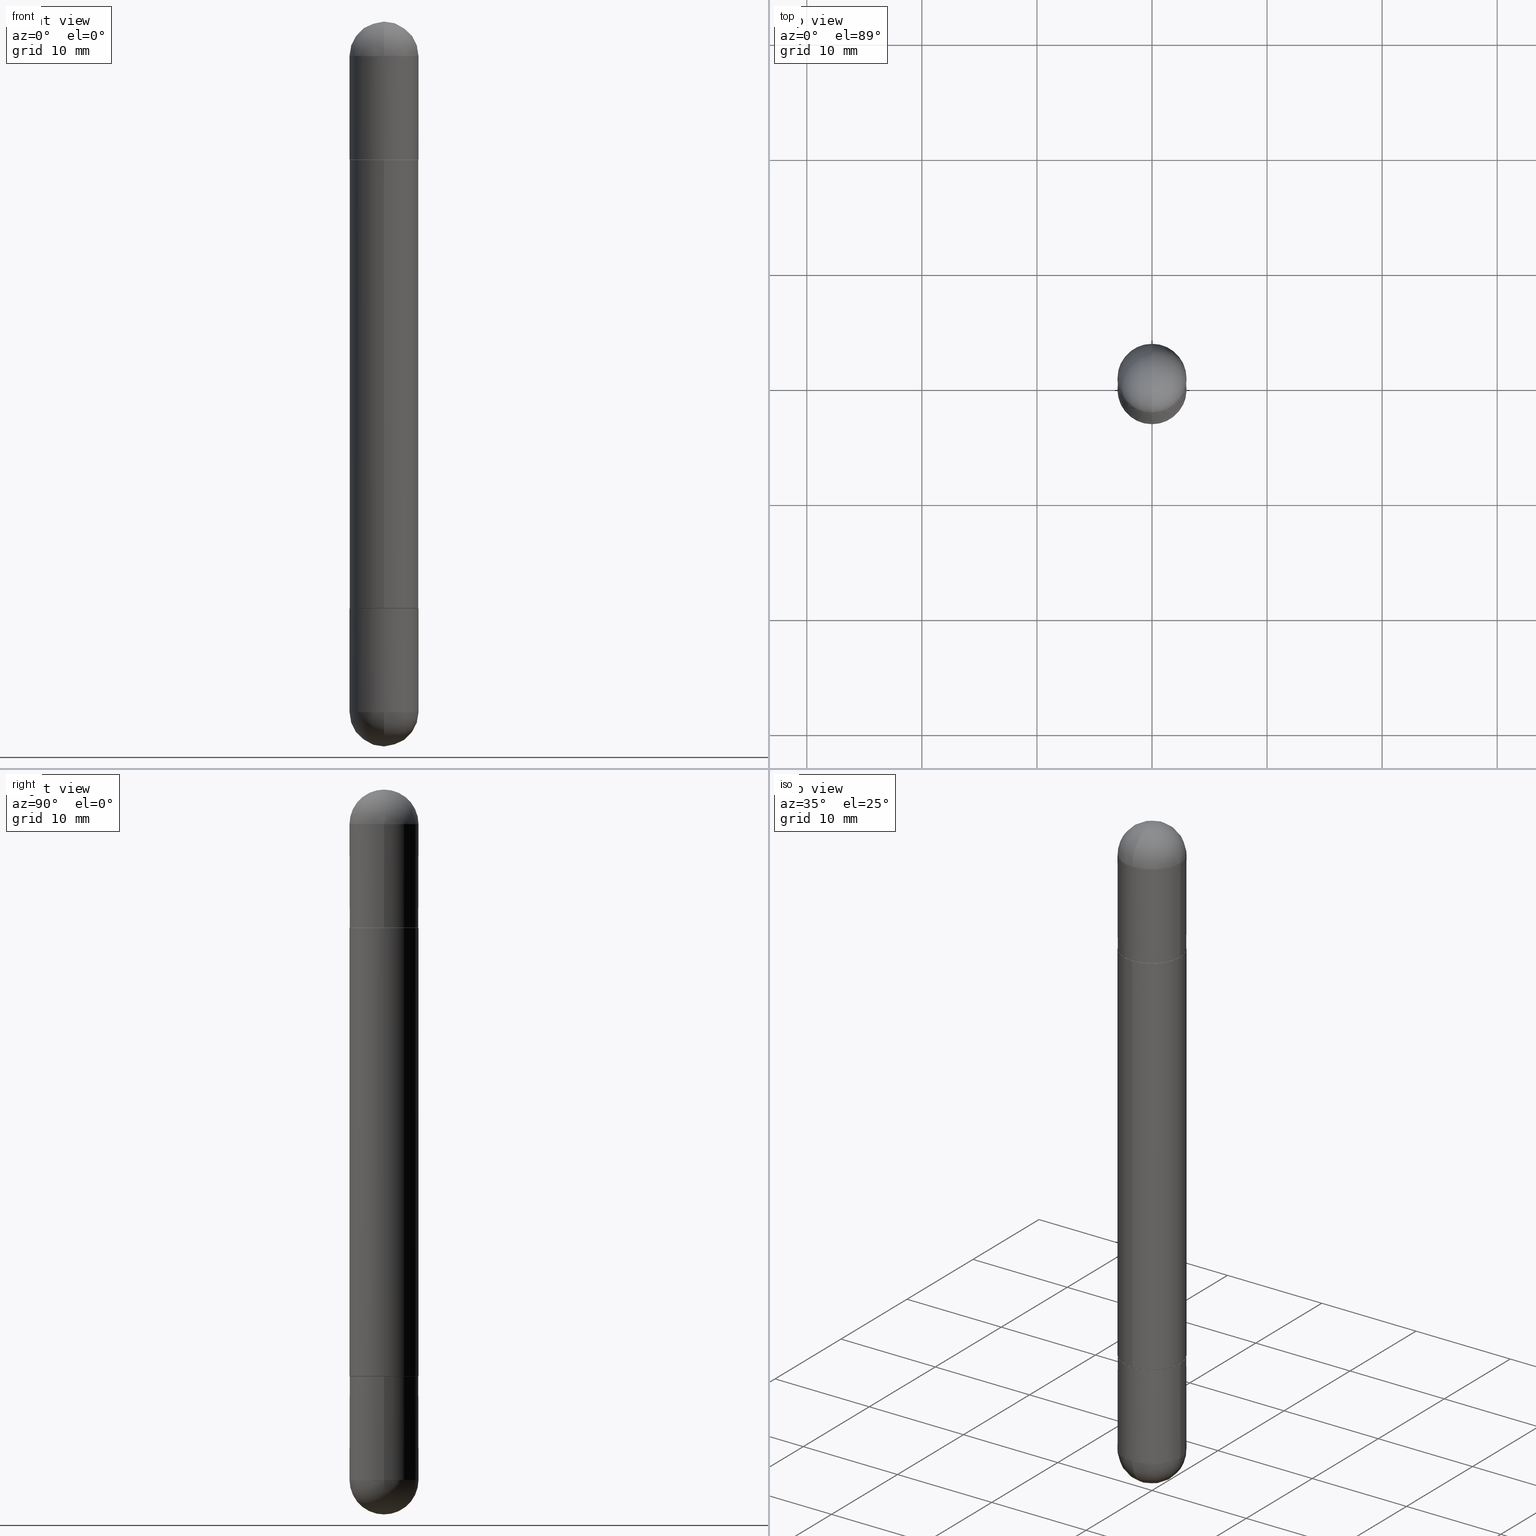
[diagram: canonical four-view strip — front | top / right | iso, engineering-drawing reading convention]
A machine part, canonical four-view strip (front | top / right | iso — engineering-drawing reading convention). The complete STEP part file that produces these views, byte-faithful:
ISO-10303-21;
HEADER;
FILE_DESCRIPTION (( 'STEP AP203' ),
    '1' );
FILE_NAME ('49103.STEP',
    '2024-03-01T12:52:53',
    ( '' ),
    ( '' ),
    'SwSTEP 2.0',
    'SolidWorks 2023',
    '' );
FILE_SCHEMA (( 'CONFIG_CONTROL_DESIGN' ));
ENDSEC;

DATA;
#1 = CARTESIAN_POINT ( 'NONE',  ( -8.246878922347486570E-16, -0.1181000000000001077, -2.480300000000001059 ) ) ;
#2 = CARTESIAN_POINT ( 'NONE',  ( 0.000000000000000000, 0.000000000000000000, -2.480300000000000171 ) ) ;
#3 = CARTESIAN_POINT ( 'NONE',  ( 0.000000000000000000, 0.000000000000000000, -2.480300000000000171 ) ) ;
#4 = DIRECTION ( 'NONE',  ( -6.982962677686265922E-15, -1.000000000000000000, 3.492150082336742220E-15 ) ) ;
#5 = CLOSED_SHELL ( 'NONE', ( #603, #395, #774, #85, #481, #327, #576, #790 ) ) ;
#6 = ADVANCED_FACE ( 'NONE', ( #548 ), #363, .T. ) ;
#7 = CIRCLE ( 'NONE', #779, 0.1180999999999999966 ) ;
#8 = ORIENTED_EDGE ( 'NONE', *, *, #432, .T. ) ;
#9 = AXIS2_PLACEMENT_3D ( 'NONE', #132, #817, #815 ) ;
#10 = FACE_OUTER_BOUND ( 'NONE', #410, .T. ) ;
#11 = CARTESIAN_POINT ( 'NONE',  ( 4.909319164617213777E-29, -7.011888150323944125E-15, -0.4724000000000001531 ) ) ;
#12 = APPROVAL_STATUS ( 'not_yet_approved' ) ;
#13 = ORIENTED_EDGE ( 'NONE', *, *, #489, .T. ) ;
#14 = CC_DESIGN_DATE_AND_TIME_ASSIGNMENT ( #215, #151, ( #233 ) ) ;
#15 = PERSON_AND_ORGANIZATION ( #155, #622 ) ;
#16 = CARTESIAN_POINT ( 'NONE',  ( 5.776686413970530874E-29, -8.247577218615279626E-15, -0.1181000000000000383 ) ) ;
#17 = VERTEX_POINT ( 'NONE', #92 ) ;
#18 = EDGE_CURVE ( 'NONE', #202, #778, #161, .T. ) ;
#19 = MECHANICAL_CONTEXT ( 'NONE', #746, 'mechanical' ) ;
#20 = VECTOR ( 'NONE', #451, 39.37007874015748143 ) ;
#21 = LINE ( 'NONE', #285, #798 ) ;
#22 = EDGE_LOOP ( 'NONE', ( #802, #181 ) ) ;
#23 = AXIS2_PLACEMENT_3D ( 'NONE', #691, #117, #316 ) ;
#24 = EDGE_LOOP ( 'NONE', ( #468, #773, #313, #446, #551 ) ) ;
#25 = VECTOR ( 'NONE', #694, 39.37007874015748143 ) ;
#26 = EDGE_CURVE ( 'NONE', #269, #331, #229, .T. ) ;
#27 = DIRECTION ( 'NONE',  ( -2.445001825099463957E-29, 3.492150082336742220E-15, -1.000000000000000000 ) ) ;
#28 = DIRECTION ( 'NONE',  ( 1.000000000000000000, -6.982962677686265922E-15, -4.883557194083112901E-29 ) ) ;
#29 = ORIENTED_EDGE ( 'NONE', *, *, #268, .T. ) ;
#30 = ORIENTED_EDGE ( 'NONE', *, *, #105, .T. ) ;
#31 = LINE ( 'NONE', #417, #583 ) ;
#32 = DIRECTION ( 'NONE',  ( -2.445468806185136597E-29, 3.491481338843145583E-15, 1.000000000000000000 ) ) ;
#33 = EDGE_LOOP ( 'NONE', ( #379, #13, #138, #231 ) ) ;
#34 = DIRECTION ( 'NONE',  ( 2.445001825099463957E-29, -3.492150082336741825E-15, 1.000000000000000000 ) ) ;
#35 = DIRECTION ( 'NONE',  ( 2.445468806185136597E-29, -3.491481338843145583E-15, 1.000000000000000000 ) ) ;
#36 = EDGE_CURVE ( 'NONE', #225, #818, #680, .T. ) ;
#37 = CARTESIAN_POINT ( 'NONE',  ( 5.445566636056644627E-29, -8.721759586755329923E-15, -0.1181000000000000383 ) ) ;
#38 = CIRCLE ( 'NONE', #501, 0.1180999999999999966 ) ;
#39 = CIRCLE ( 'NONE', #259, 0.1181000000000002603 ) ;
#40 = APPROVAL_PERSON_ORGANIZATION ( #15, #754, #282 ) ;
#41 = CARTESIAN_POINT ( 'NONE',  ( -8.246878922347006351E-16, -0.1181000000000072547, -0.4734000000000008757 ) ) ;
#42 = APPROVAL_STATUS ( 'not_yet_approved' ) ;
#43 = CARTESIAN_POINT ( 'NONE',  ( 5.776686413970530874E-29, -8.247577218615279626E-15, -0.1181000000000000383 ) ) ;
#44 = COORDINATED_UNIVERSAL_TIME_OFFSET ( 5, 0, .BEHIND. ) ;
#45 = ORIENTED_EDGE ( 'NONE', *, *, #420, .F. ) ;
#46 = CARTESIAN_POINT ( 'NONE',  ( 5.776686413970530874E-29, -8.247577218615279626E-15, -2.362200000000000077 ) ) ;
#47 = DIRECTION ( 'NONE',  ( 1.000000000000000000, -6.982962677686265133E-15, 0.000000000000000000 ) ) ;
#48 = DIRECTION ( 'NONE',  ( 4.851104656541377638E-15, 0.7071067811866103003, -0.7071067811864847341 ) ) ;
#49 = CARTESIAN_POINT ( 'NONE',  ( 5.739426259004713893E-29, -9.126871993523741848E-15, -2.480300000000000171 ) ) ;
#50 = AXIS2_PLACEMENT_3D ( 'NONE', #605, #35, #236 ) ;
#51 = AXIS2_PLACEMENT_3D ( 'NONE', #735, #368, #431 ) ;
#52 = EDGE_CURVE ( 'NONE', #699, #516, #244, .T. ) ;
#53 = CIRCLE ( 'NONE', #743, 0.1170999999999999958 ) ;
#54 = EDGE_LOOP ( 'NONE', ( #154, #540 ) ) ;
#55 = DIRECTION ( 'NONE',  ( 1.000000000000000000, -6.982962677686265133E-15, 0.000000000000000000 ) ) ;
#56 = DIRECTION ( 'NONE',  ( 1.000000000000000000, -6.982962677686266711E-15, 0.000000000000000000 ) ) ;
#57 = ORIENTED_EDGE ( 'NONE', *, *, #90, .F. ) ;
#58 = FACE_OUTER_BOUND ( 'NONE', #689, .T. ) ;
#59 = CARTESIAN_POINT ( 'NONE',  ( 5.445566636056644627E-29, -8.721759586755329923E-15, -0.1181000000000000383 ) ) ;
#60 = ORIENTED_EDGE ( 'NONE', *, *, #36, .F. ) ;
#61 = EDGE_CURVE ( 'NONE', #406, #68, #111, .T. ) ;
#62 = DIRECTION ( 'NONE',  ( -6.982962677686265922E-15, -1.000000000000000000, 2.332918867347791121E-15 ) ) ;
#63 = AXIS2_PLACEMENT_3D ( 'NONE', #673, #34, #159 ) ;
#64 = AXIS2_PLACEMENT_3D ( 'NONE', #2, #767, #522 ) ;
#65 = CARTESIAN_POINT ( 'NONE',  ( -8.177049295570126487E-16, -0.1171000000000070179, -0.4724000000000008193 ) ) ;
#66 = CARTESIAN_POINT ( 'NONE',  ( 5.445566636056644627E-29, -8.721759586755329923E-15, -0.1181000000000000383 ) ) ;
#67 = AXIS2_PLACEMENT_3D ( 'NONE', #530, #654, #81 ) ;
#68 = VERTEX_POINT ( 'NONE', #782 ) ;
#69 =( CONVERSION_BASED_UNIT ( 'INCH', #640 ) LENGTH_UNIT ( ) NAMED_UNIT ( #191 ) );
#70 = ORIENTED_EDGE ( 'NONE', *, *, #340, .F. ) ;
#71 = PLANE ( 'NONE',  #582 ) ;
#72 =( NAMED_UNIT ( * ) SI_UNIT ( $, .STERADIAN. ) SOLID_ANGLE_UNIT ( ) );
#73 = VERTEX_POINT ( 'NONE', #585 ) ;
#74 = CARTESIAN_POINT ( 'NONE',  ( -8.246878922347090168E-16, -0.1181000000000044375, -1.240150000000000086 ) ) ;
#75 = PERSON_AND_ORGANIZATION ( #155, #622 ) ;
#76 = VECTOR ( 'NONE', #27, 39.37007874015748143 ) ;
#77 = EDGE_CURVE ( 'NONE', #511, #563, #211, .T. ) ;
#78 = ORIENTED_EDGE ( 'NONE', *, *, #590, .T. ) ;
#79 = APPROVAL_PERSON_ORGANIZATION ( #709, #695, #137 ) ;
#80 = DIRECTION ( 'NONE',  ( -6.982962677686265922E-15, -1.000000000000000000, 2.332918867347791121E-15 ) ) ;
#81 = DIRECTION ( 'NONE',  ( -1.000000000000000000, 6.982962677686265922E-15, 4.876176775795935793E-29 ) ) ;
#82 = ORIENTED_EDGE ( 'NONE', *, *, #675, .F. ) ;
#83 = DIRECTION ( 'NONE',  ( -2.445001825099463957E-29, 3.492150082336741825E-15, -1.000000000000000000 ) ) ;
#84 = ORIENTED_EDGE ( 'NONE', *, *, #275, .F. ) ;
#85 = ADVANCED_FACE ( 'NONE', ( #287 ), #71, .F. ) ;
#86 = AXIS2_PLACEMENT_3D ( 'NONE', #3, #523, #136 ) ;
#87 = LINE ( 'NONE', #783, #439 ) ;
#88 = ORIENTED_EDGE ( 'NONE', *, *, #562, .T. ) ;
#89 = CARTESIAN_POINT ( 'NONE',  ( 5.445566636056644627E-29, -8.721759586755329923E-15, -2.362200000000000077 ) ) ;
#90 = EDGE_CURVE ( 'NONE', #628, #216, #276, .T. ) ;
#91 = CARTESIAN_POINT ( 'NONE',  ( 8.067945645379818259E-16, 0.1170999999999929736, -0.4723999999999999866 ) ) ;
#92 = CARTESIAN_POINT ( 'NONE',  ( 8.067945645379818259E-16, 0.1170999999999929736, -0.4723999999999999866 ) ) ;
#93 = ADVANCED_FACE ( 'NONE', ( #147 ), #404, .T. ) ;
#94 = CARTESIAN_POINT ( 'NONE',  ( 4.910256815939136430E-29, -7.010545380263152499E-15, -0.4724000000000001531 ) ) ;
#95 = EDGE_CURVE ( 'NONE', #589, #457, #396, .T. ) ;
#96 = DIRECTION ( 'NONE',  ( 2.445001825099463957E-29, -3.492150082336741825E-15, 1.000000000000000000 ) ) ;
#97 = ADVANCED_FACE ( 'NONE', ( #228 ), #171, .T. ) ;
#98 = AXIS2_PLACEMENT_3D ( 'NONE', #133, #477, #618 ) ;
#99 = VECTOR ( 'NONE', #646, 39.37007874015748143 ) ;
#100 = AXIS2_PLACEMENT_3D ( 'NONE', #485, #568, #62 ) ;
#101 = PERSON_AND_ORGANIZATION_ROLE ( 'creator' ) ;
#102 = DIRECTION ( 'NONE',  ( 6.982962677686265133E-15, 1.000000000000000000, 0.000000000000000000 ) ) ;
#103 = PLANE ( 'NONE',  #112 ) ;
#104 = CARTESIAN_POINT ( 'NONE',  ( 0.000000000000000000, 0.000000000000000000, 0.000000000000000000 ) ) ;
#105 = EDGE_CURVE ( 'NONE', #628, #452, #650, .T. ) ;
#106 = VERTEX_POINT ( 'NONE', #483 ) ;
#107 = DIRECTION ( 'NONE',  ( -6.982962677686265922E-15, -1.000000000000000000, -3.492150082336742220E-15 ) ) ;
#108 = PERSON_AND_ORGANIZATION_ROLE ( 'classification_officer' ) ;
#109 = ORIENTED_EDGE ( 'NONE', *, *, #309, .T. ) ;
#110 = DIRECTION ( 'NONE',  ( -6.982962677686265922E-15, -1.000000000000000000, -3.469747663417770297E-15 ) ) ;
#111 = CIRCLE ( 'NONE', #809, 0.1170999999999999958 ) ;
#112 = AXIS2_PLACEMENT_3D ( 'NONE', #497, #376, #752 ) ;
#113 = AXIS2_PLACEMENT_3D ( 'NONE', #701, #312, #329 ) ;
#114 = DIRECTION ( 'NONE',  ( -1.000000000000000000, 6.982962677686265922E-15, 4.883557194083112340E-29 ) ) ;
#115 = ORIENTED_EDGE ( 'NONE', *, *, #562, .F. ) ;
#116 = DIRECTION ( 'NONE',  ( -6.982962677686265133E-15, -1.000000000000000000, -4.626330217890365392E-15 ) ) ;
#117 = DIRECTION ( 'NONE',  ( -1.000000000000000000, 6.982962677686265922E-15, 4.883557194083112340E-29 ) ) ;
#118 = EDGE_CURVE ( 'NONE', #128, #449, #364, .T. ) ;
#119 = CARTESIAN_POINT ( 'NONE',  ( 8.102248135368686180E-16, 0.1180999999999932243, -0.4734000000000000430 ) ) ;
#120 = CARTESIAN_POINT ( 'NONE',  ( 4.909319164617213216E-29, -7.011888150323943336E-15, -0.4724000000000004307 ) ) ;
#121 = EDGE_CURVE ( 'NONE', #17, #628, #668, .T. ) ;
#122 = CC_DESIGN_PERSON_AND_ORGANIZATION_ASSIGNMENT ( #427, #108, ( #299 ) ) ;
#123 = EDGE_LOOP ( 'NONE', ( #197, #750, #263, #209 ) ) ;
#124 = DIRECTION ( 'NONE',  ( 2.445468806185136597E-29, -3.491481338843145583E-15, 1.000000000000000000 ) ) ;
#125 = ORIENTED_EDGE ( 'NONE', *, *, #420, .T. ) ;
#126 = AXIS2_PLACEMENT_3D ( 'NONE', #670, #357, #785 ) ;
#127 = CIRCLE ( 'NONE', #687, 0.1180999999999999966 ) ;
#128 = VERTEX_POINT ( 'NONE', #41 ) ;
#129 = CARTESIAN_POINT ( 'NONE',  ( 8.102248135368185253E-16, 0.1181000000000001077, -2.480299999999999727 ) ) ;
#130 = CIRCLE ( 'NONE', #770, 0.1180999999999999966 ) ;
#131 = EDGE_LOOP ( 'NONE', ( #297, #433, #642, #385 ) ) ;
#132 = CARTESIAN_POINT ( 'NONE',  ( 4.910256815939136430E-29, -7.010545380263152499E-15, -2.007900000000000240 ) ) ;
#133 = CARTESIAN_POINT ( 'NONE',  ( 5.776686413970530874E-29, -8.247577218615279626E-15, -0.1181000000000000383 ) ) ;
#134 = EDGE_LOOP ( 'NONE', ( #359, #445, #534, #88, #184 ) ) ;
#135 = CYLINDRICAL_SURFACE ( 'NONE', #464, 0.1181000000000001077 ) ;
#136 = DIRECTION ( 'NONE',  ( -6.982962677686265133E-15, -1.000000000000000000, -4.626330217890365392E-15 ) ) ;
#137 = APPROVAL_ROLE ( '' ) ;
#138 = ORIENTED_EDGE ( 'NONE', *, *, #275, .T. ) ;
#139 = MANIFOLD_SOLID_BREP ( 'Mirror4[3]', #620 ) ;
#140 = PERSON_AND_ORGANIZATION ( #155, #622 ) ;
#141 = CIRCLE ( 'NONE', #607, 0.1180999999999999966 ) ;
#142 = CONICAL_SURFACE ( 'NONE', #284, 0.1170999999999999958, 0.7853981633975336552 ) ;
#143 = DIRECTION ( 'NONE',  ( -6.982962677686265922E-15, -1.000000000000000000, 2.332918867347791121E-15 ) ) ;
#144 = ORIENTED_EDGE ( 'NONE', *, *, #61, .F. ) ;
#145 = AXIS2_PLACEMENT_3D ( 'NONE', #510, #764, #341 ) ;
#146 = LINE ( 'NONE', #1, #99 ) ;
#147 = FACE_OUTER_BOUND ( 'NONE', #156, .T. ) ;
#148 = FACE_OUTER_BOUND ( 'NONE', #134, .T. ) ;
#149 = FACE_OUTER_BOUND ( 'NONE', #711, .T. ) ;
#150 = ORIENTED_EDGE ( 'NONE', *, *, #612, .F. ) ;
#151 = DATE_TIME_ROLE ( 'creation_date' ) ;
#152 = DIRECTION ( 'NONE',  ( -2.445001825099463957E-29, 3.492150082336741825E-15, 1.000000000000000000 ) ) ;
#153 = CYLINDRICAL_SURFACE ( 'NONE', #283, 0.1180999999999999966 ) ;
#154 = ORIENTED_EDGE ( 'NONE', *, *, #243, .T. ) ;
#155 = PERSON ( 'UNSPECIFIED', 'UNSPECIFIED', 'UNSPECIFIED', ('UNSPECIFIED'), ('UNSPECIFIED'), ('UNSPECIFIED') ) ;
#156 = EDGE_LOOP ( 'NONE', ( #611, #280, #347, #45 ) ) ;
#157 = PRODUCT_RELATED_PRODUCT_CATEGORY ( 'detail', '', ( #712 ) ) ;
#158 = EDGE_CURVE ( 'NONE', #516, #265, #714, .T. ) ;
#159 = DIRECTION ( 'NONE',  ( -6.982962677686265922E-15, -1.000000000000000000, -3.499378301021686484E-15 ) ) ;
#160 = DIRECTION ( 'NONE',  ( 1.000000000000000000, -6.982962677686266711E-15, 0.000000000000000000 ) ) ;
#161 = CIRCLE ( 'NONE', #476, 0.1170999999999999958 ) ;
#162 = AXIS2_PLACEMENT_3D ( 'NONE', #633, #749, #201 ) ;
#163 = EDGE_CURVE ( 'NONE', #472, #449, #361, .T. ) ;
#164 = CC_DESIGN_PERSON_AND_ORGANIZATION_ASSIGNMENT ( #550, #183, ( #441 ) ) ;
#165 = DIRECTION ( 'NONE',  ( 6.982962677686265922E-15, 1.000000000000000000, 3.469747663417769508E-15 ) ) ;
#166 = FACE_OUTER_BOUND ( 'NONE', #708, .T. ) ;
#167 = DIRECTION ( 'NONE',  ( -4.937700262164969294E-15, -0.7071067811866054154, -0.7071067811864896191 ) ) ;
#168 = CC_DESIGN_PERSON_AND_ORGANIZATION_ASSIGNMENT ( #140, #538, ( #233 ) ) ;
#169 = PERSON_AND_ORGANIZATION ( #155, #622 ) ;
#170 = ORIENTED_EDGE ( 'NONE', *, *, #737, .T. ) ;
#171 = CYLINDRICAL_SURFACE ( 'NONE', #557, 0.1180999999999999966 ) ;
#172 = EDGE_CURVE ( 'NONE', #725, #457, #595, .T. ) ;
#173 = CLOSED_SHELL ( 'NONE', ( #753, #436, #424, #428, #625 ) ) ;
#174 = ORIENTED_EDGE ( 'NONE', *, *, #77, .F. ) ;
#175 = CIRCLE ( 'NONE', #305, 0.1181000000000002326 ) ;
#176 = CARTESIAN_POINT ( 'NONE',  ( -0.1180999999999999966, -6.789910328506537866E-15, -2.007900000000000240 ) ) ;
#177 = AXIS2_PLACEMENT_3D ( 'NONE', #195, #443, #693 ) ;
#178 = CARTESIAN_POINT ( 'NONE',  ( 5.445566636056644627E-29, -8.721759586755329923E-15, -0.1181000000000000383 ) ) ;
#179 = EDGE_CURVE ( 'NONE', #575, #106, #671, .T. ) ;
#180 = PERSON_AND_ORGANIZATION ( #155, #622 ) ;
#181 = ORIENTED_EDGE ( 'NONE', *, *, #18, .T. ) ;
#182 = DIRECTION ( 'NONE',  ( -6.982962677686265922E-15, -1.000000000000000000, -3.499378301021686484E-15 ) ) ;
#183 = PERSON_AND_ORGANIZATION_ROLE ( 'design_supplier' ) ;
#184 = ORIENTED_EDGE ( 'NONE', *, *, #172, .T. ) ;
#185 = CARTESIAN_POINT ( 'NONE',  ( 4.909319164617213216E-29, -7.011888150323943336E-15, -0.4724000000000004307 ) ) ;
#186 = EDGE_CURVE ( 'NONE', #778, #202, #399, .T. ) ;
#187 = FACE_OUTER_BOUND ( 'NONE', #131, .T. ) ;
#188 = ORIENTED_EDGE ( 'NONE', *, *, #268, .F. ) ;
#189 = CARTESIAN_POINT ( 'NONE',  ( 5.445566636056644627E-29, -8.721759586755329923E-15, -2.362200000000000077 ) ) ;
#190 = EDGE_CURVE ( 'NONE', #656, #17, #320, .T. ) ;
#191 = DIMENSIONAL_EXPONENTS ( 1.000000000000000000, 0.000000000000000000, 0.000000000000000000, 0.000000000000000000, 0.000000000000000000, 0.000000000000000000, 0.000000000000000000 ) ;
#192 = CIRCLE ( 'NONE', #758, 0.1181000000000002326 ) ;
#193 = SPHERICAL_SURFACE ( 'NONE', #162, 0.1181000000000002603 ) ;
#194 = CIRCLE ( 'NONE', #609, 0.1181000000000002603 ) ;
#195 = CARTESIAN_POINT ( 'NONE',  ( 4.910256815939136430E-29, -7.010545380263152499E-15, -0.4724000000000001531 ) ) ;
#196 = DIRECTION ( 'NONE',  ( 6.860497997771530774E-15, 1.000000000000000000, 0.000000000000000000 ) ) ;
#197 = ORIENTED_EDGE ( 'NONE', *, *, #590, .F. ) ;
#198 = CARTESIAN_POINT ( 'NONE',  ( 4.906874162792113662E-29, -7.008396000241606777E-15, -0.4734000000000004871 ) ) ;
#199 = DIRECTION ( 'NONE',  ( 1.000000000000000000, -6.982962677686265133E-15, 0.000000000000000000 ) ) ;
#200 = ORIENTED_EDGE ( 'NONE', *, *, #460, .F. ) ;
#201 = DIRECTION ( 'NONE',  ( 6.982962677686265922E-15, 1.000000000000000000, 3.469747663417769508E-15 ) ) ;
#202 = VERTEX_POINT ( 'NONE', #91 ) ;
#203 = CARTESIAN_POINT ( 'NONE',  ( 3.032169013397101030E-29, -4.330789924609910970E-15, -1.240150000000000086 ) ) ;
#204 = DIRECTION ( 'NONE',  ( -1.000000000000000000, 0.000000000000000000, 0.000000000000000000 ) ) ;
#205 = ORIENTED_EDGE ( 'NONE', *, *, #675, .T. ) ;
#206 = AXIS2_PLACEMENT_3D ( 'NONE', #43, #423, #413 ) ;
#207 = PLANE ( 'NONE',  #688 ) ;
#208 = CIRCLE ( 'NONE', #426, 0.1181000000000002603 ) ;
#209 = ORIENTED_EDGE ( 'NONE', *, *, #163, .F. ) ;
#210 = EDGE_CURVE ( 'NONE', #216, #422, #535, .T. ) ;
#211 = LINE ( 'NONE', #343, #702 ) ;
#212 = CARTESIAN_POINT ( 'NONE',  ( 4.909319164617213777E-29, -7.011888150323944125E-15, -2.007900000000000240 ) ) ;
#213 = DIRECTION ( 'NONE',  ( 1.000000000000000000, -6.860497997771530774E-15, -4.840798879624142912E-29 ) ) ;
#214 = ORIENTED_EDGE ( 'NONE', *, *, #453, .T. ) ;
#215 = DATE_AND_TIME ( #780, #787 ) ;
#216 = VERTEX_POINT ( 'NONE', #795 ) ;
#217 = CARTESIAN_POINT ( 'NONE',  ( 5.739426259004713893E-29, -9.126871993523741848E-15, 2.219626494852213988E-16 ) ) ;
#218 = VECTOR ( 'NONE', #292, 39.37007874015748143 ) ;
#219 = EDGE_CURVE ( 'NONE', #225, #699, #281, .T. ) ;
#220 = APPROVAL_STATUS ( 'not_yet_approved' ) ;
#221 = AXIS2_PLACEMENT_3D ( 'NONE', #330, #458, #644 ) ;
#222 = AXIS2_PLACEMENT_3D ( 'NONE', #323, #264, #512 ) ;
#223 = ORIENTED_EDGE ( 'NONE', *, *, #705, .T. ) ;
#224 = DIRECTION ( 'NONE',  ( -2.445468806185136597E-29, 3.491481338843145583E-15, 1.000000000000000000 ) ) ;
#225 = VERTEX_POINT ( 'NONE', #242 ) ;
#226 = DIRECTION ( 'NONE',  ( -2.445468806185136597E-29, 3.491481338843145583E-15, 1.000000000000000000 ) ) ;
#227 = CYLINDRICAL_SURFACE ( 'NONE', #401, 0.1180999999999999966 ) ;
#228 = FACE_OUTER_BOUND ( 'NONE', #24, .T. ) ;
#229 = CIRCLE ( 'NONE', #50, 0.1180999999999999966 ) ;
#230 = AXIS2_PLACEMENT_3D ( 'NONE', #658, #83, #593 ) ;
#231 = ORIENTED_EDGE ( 'NONE', *, *, #386, .F. ) ;
#232 = LOCAL_TIME ( 7, 52, 53.00000000000000000, #720 ) ;
#233 = PRODUCT_DEFINITION ( 'UNKNOWN', '', #441, #293 ) ;
#234 = DIRECTION ( 'NONE',  ( -0.000000000000000000, -0.000000000000000000, -1.000000000000000000 ) ) ;
#235 = DATE_TIME_ROLE ( 'classification_date' ) ;
#236 = DIRECTION ( 'NONE',  ( 1.000000000000000000, -6.982962677686265133E-15, 0.000000000000000000 ) ) ;
#237 = EDGE_LOOP ( 'NONE', ( #310, #492, #29, #334 ) ) ;
#238 = CARTESIAN_POINT ( 'NONE',  ( 4.906874162792113662E-29, -7.008396000241606777E-15, -2.006899999999999906 ) ) ;
#239 = DATE_AND_TIME ( #560, #759 ) ;
#240 = ORIENTED_EDGE ( 'NONE', *, *, #210, .F. ) ;
#241 = DIRECTION ( 'NONE',  ( 1.000000000000000000, -6.982962677686265133E-15, 0.000000000000000000 ) ) ;
#242 = CARTESIAN_POINT ( 'NONE',  ( 0.1180999999999999966, -8.453749191673964325E-15, -0.1181000000000000383 ) ) ;
#243 = EDGE_CURVE ( 'NONE', #480, #563, #652, .T. ) ;
#244 = CIRCLE ( 'NONE', #98, 0.1180999999999999966 ) ;
#245 = VERTEX_POINT ( 'NONE', #486 ) ;
#246 = AXIS2_PLACEMENT_3D ( 'NONE', #178, #678, #165 ) ;
#247 = CARTESIAN_POINT ( 'NONE',  ( 0.1180999999999999966, -8.453749191673964325E-15, -0.1181000000000000383 ) ) ;
#248 = ADVANCED_FACE ( 'NONE', ( #732 ), #289, .T. ) ;
#249 = CARTESIAN_POINT ( 'NONE',  ( 5.776686413970530874E-29, -8.247577218615279626E-15, -2.362200000000000077 ) ) ;
#250 = DIRECTION ( 'NONE',  ( -2.445001825099463957E-29, 3.492150082336741825E-15, 1.000000000000000000 ) ) ;
#251 = ORIENTED_EDGE ( 'NONE', *, *, #544, .T. ) ;
#252 = FACE_OUTER_BOUND ( 'NONE', #419, .T. ) ;
#253 = CARTESIAN_POINT ( 'NONE',  ( 4.909319164617213216E-29, -7.011888150323943336E-15, -2.007899999999999796 ) ) ;
#254 = FACE_OUTER_BOUND ( 'NONE', #739, .T. ) ;
#255 = FACE_OUTER_BOUND ( 'NONE', #33, .T. ) ;
#256 = ORIENTED_EDGE ( 'NONE', *, *, #600, .F. ) ;
#257 = CARTESIAN_POINT ( 'NONE',  ( 4.909319164617213216E-29, -7.011888150323943336E-15, -0.4724000000000004307 ) ) ;
#258 = CARTESIAN_POINT ( 'NONE',  ( -8.177049295570126487E-16, -0.1171000000000070179, -0.4724000000000008193 ) ) ;
#259 = AXIS2_PLACEMENT_3D ( 'NONE', #715, #213, #710 ) ;
#260 = VECTOR ( 'NONE', #318, 39.37007874015748143 ) ;
#261 = CARTESIAN_POINT ( 'NONE',  ( 4.909319164617213216E-29, -7.011888150323943336E-15, -0.4724000000000004307 ) ) ;
#262 = FACE_OUTER_BOUND ( 'NONE', #760, .T. ) ;
#263 = ORIENTED_EDGE ( 'NONE', *, *, #266, .T. ) ;
#264 = DIRECTION ( 'NONE',  ( -1.000000000000000000, 6.982962677686265922E-15, -4.883557194083112901E-29 ) ) ;
#265 = VERTEX_POINT ( 'NONE', #742 ) ;
#266 = EDGE_CURVE ( 'NONE', #406, #449, #665, .T. ) ;
#267 = SPHERICAL_SURFACE ( 'NONE', #222, 0.1181000000000002603 ) ;
#268 = EDGE_CURVE ( 'NONE', #656, #452, #31, .T. ) ;
#269 = VERTEX_POINT ( 'NONE', #247 ) ;
#270 = VECTOR ( 'NONE', #543, 39.37007874015748143 ) ;
#271 = ORIENTED_EDGE ( 'NONE', *, *, #386, .T. ) ;
#272 = CARTESIAN_POINT ( 'NONE',  ( 0.000000000000000000, 0.000000000000000000, 0.000000000000000000 ) ) ;
#273 = ORIENTED_EDGE ( 'NONE', *, *, #179, .F. ) ;
#274 = EDGE_CURVE ( 'NONE', #245, #269, #730, .T. ) ;
#275 = EDGE_CURVE ( 'NONE', #662, #128, #768, .T. ) ;
#276 = LINE ( 'NONE', #393, #76 ) ;
#277 = APPLICATION_CONTEXT ( 'configuration controlled 3d designs of mechanical parts and assemblies' ) ;
#278 = PLANE ( 'NONE',  #67 ) ;
#279 = CARTESIAN_POINT ( 'NONE',  ( 8.102248135368491923E-16, 0.1180999999999932520, -2.006900000000000350 ) ) ;
#280 = ORIENTED_EDGE ( 'NONE', *, *, #90, .T. ) ;
#281 = CIRCLE ( 'NONE', #206, 0.1180999999999999966 ) ;
#282 = APPROVAL_ROLE ( '' ) ;
#283 = AXIS2_PLACEMENT_3D ( 'NONE', #409, #224, #601 ) ;
#284 = AXIS2_PLACEMENT_3D ( 'NONE', #416, #152, #660 ) ;
#285 = CARTESIAN_POINT ( 'NONE',  ( 8.033643155390953296E-16, 0.1170999999999929736, -0.4723999999999999866 ) ) ;
#286 = EDGE_LOOP ( 'NONE', ( #473, #342 ) ) ;
#287 = FACE_OUTER_BOUND ( 'NONE', #22, .T. ) ;
#288 = DIRECTION ( 'NONE',  ( -2.445468806185136877E-29, 3.491481338843145188E-15, -1.000000000000000000 ) ) ;
#289 = SPHERICAL_SURFACE ( 'NONE', #246, 0.1181000000000002603 ) ;
#290 = EDGE_CURVE ( 'NONE', #733, #511, #520, .T. ) ;
#291 = DIRECTION ( 'NONE',  ( 2.445001825099463957E-29, -3.492150082336741825E-15, 1.000000000000000000 ) ) ;
#292 = DIRECTION ( 'NONE',  ( -2.445001825099463957E-29, 3.492150082336742220E-15, -1.000000000000000000 ) ) ;
#293 = DESIGN_CONTEXT ( 'detailed design', #277, 'design' ) ;
#294 = AXIS2_PLACEMENT_3D ( 'NONE', #300, #553, #727 ) ;
#295 = CIRCLE ( 'NONE', #558, 0.1181000000000002326 ) ;
#296 = DATE_AND_TIME ( #738, #719 ) ;
#297 = ORIENTED_EDGE ( 'NONE', *, *, #706, .F. ) ;
#298 = ORIENTED_EDGE ( 'NONE', *, *, #537, .T. ) ;
#299 = SECURITY_CLASSIFICATION ( '', '', #604 ) ;
#300 = CARTESIAN_POINT ( 'NONE',  ( 4.906874162792113662E-29, -7.008396000241606777E-15, -0.4734000000000004871 ) ) ;
#301 = APPROVAL_ROLE ( '' ) ;
#302 = CARTESIAN_POINT ( 'NONE',  ( 0.1180999999999999966, -8.453749191673964325E-15, -2.362200000000000077 ) ) ;
#303 = DIRECTION ( 'NONE',  ( 1.000000000000000000, -6.982962677686266711E-15, 4.876176775795936353E-29 ) ) ;
#304 = AXIS2_PLACEMENT_3D ( 'NONE', #355, #545, #736 ) ;
#305 = AXIS2_PLACEMENT_3D ( 'NONE', #804, #250, #498 ) ;
#306 = FACE_OUTER_BOUND ( 'NONE', #813, .T. ) ;
#307 = CONICAL_SURFACE ( 'NONE', #479, 0.1170999999999999958, 0.7853981633975336552 ) ;
#308 = DIRECTION ( 'NONE',  ( 1.000000000000000000, -6.982962677686265133E-15, 0.000000000000000000 ) ) ;
#309 = EDGE_CURVE ( 'NONE', #449, #472, #175, .T. ) ;
#310 = ORIENTED_EDGE ( 'NONE', *, *, #121, .F. ) ;
#311 = DIRECTION ( 'NONE',  ( 2.445001825099463957E-29, -3.492150082336741825E-15, 1.000000000000000000 ) ) ;
#312 = DIRECTION ( 'NONE',  ( -2.445468806185136597E-29, 3.491481338843145583E-15, -1.000000000000000000 ) ) ;
#313 = ORIENTED_EDGE ( 'NONE', *, *, #243, .F. ) ;
#314 = ADVANCED_BREP_SHAPE_REPRESENTATION ( '49103', ( #407, #676, #139, #696, #408, #664 ), #584 ) ;
#315 = FACE_OUTER_BOUND ( 'NONE', #123, .T. ) ;
#316 = DIRECTION ( 'NONE',  ( -6.982962677686265133E-15, -1.000000000000000000, 0.000000000000000000 ) ) ;
#317 = CARTESIAN_POINT ( 'NONE',  ( -0.1180999999999999966, -6.818836485902398524E-15, -0.4724000000000001531 ) ) ;
#318 = DIRECTION ( 'NONE',  ( -2.445001825099463957E-29, 3.492150082336742220E-15, -1.000000000000000000 ) ) ;
#319 = ORIENTED_EDGE ( 'NONE', *, *, #118, .F. ) ;
#320 = CIRCLE ( 'NONE', #63, 0.1170999999999999958 ) ;
#321 = DIRECTION ( 'NONE',  ( 1.000000000000000000, -6.982962677686265133E-15, 0.000000000000000000 ) ) ;
#322 = AXIS2_PLACEMENT_3D ( 'NONE', #37, #491, #641 ) ;
#323 = CARTESIAN_POINT ( 'NONE',  ( 5.445566636056644627E-29, -8.721759586755329923E-15, -2.362200000000000077 ) ) ;
#324 = CARTESIAN_POINT ( 'NONE',  ( 0.1180999999999999966, -7.835233272497900762E-15, -0.4724000000000001531 ) ) ;
#325 = EDGE_LOOP ( 'NONE', ( #174, #697, #515, #637, #781 ) ) ;
#326 = ADVANCED_FACE ( 'NONE', ( #187 ), #193, .T. ) ;
#327 = ADVANCED_FACE ( 'NONE', ( #254 ), #700, .T. ) ;
#328 = CARTESIAN_POINT ( 'NONE',  ( 5.776686413970530874E-29, -8.247577218615279626E-15, -0.1181000000000000383 ) ) ;
#329 = DIRECTION ( 'NONE',  ( 1.000000000000000000, -6.982962677686266711E-15, 0.000000000000000000 ) ) ;
#330 = CARTESIAN_POINT ( 'NONE',  ( 8.246878922347970734E-16, 0.1180999999999929745, -0.4723999999999995980 ) ) ;
#331 = VERTEX_POINT ( 'NONE', #532 ) ;
#332 = DIRECTION ( 'NONE',  ( -6.982962677686265922E-15, -1.000000000000000000, -3.492150082336742220E-15 ) ) ;
#333 = ADVANCED_FACE ( 'NONE', ( #430 ), #103, .F. ) ;
#334 = ORIENTED_EDGE ( 'NONE', *, *, #541, .T. ) ;
#335 = CARTESIAN_POINT ( 'NONE',  ( -8.177049295570126487E-16, -0.1171000000000070179, -2.007899999999999796 ) ) ;
#336 = AXIS2_PLACEMENT_3D ( 'NONE', #89, #786, #669 ) ;
#337 = EDGE_CURVE ( 'NONE', #659, #818, #373, .T. ) ;
#338 = APPROVAL_DATE_TIME ( #657, #754 ) ;
#339 = CC_DESIGN_APPROVAL ( #754, ( #233 ) ) ;
#340 = EDGE_CURVE ( 'NONE', #418, #331, #350, .T. ) ;
#341 = DIRECTION ( 'NONE',  ( 1.000000000000000000, -6.982962677686266711E-15, 0.000000000000000000 ) ) ;
#342 = ORIENTED_EDGE ( 'NONE', *, *, #337, .F. ) ;
#343 = CARTESIAN_POINT ( 'NONE',  ( -0.1180999999999999966, 8.391509709326782957E-16, -5.809262341591043784E-30 ) ) ;
#344 = CARTESIAN_POINT ( 'NONE',  ( 8.102248135368686180E-16, 0.1180999999999932243, -0.4734000000000000430 ) ) ;
#345 = FACE_OUTER_BOUND ( 'NONE', #632, .T. ) ;
#346 = ORIENTED_EDGE ( 'NONE', *, *, #494, .T. ) ;
#347 = ORIENTED_EDGE ( 'NONE', *, *, #705, .F. ) ;
#348 = ORIENTED_EDGE ( 'NONE', *, *, #655, .T. ) ;
#349 = DIRECTION ( 'NONE',  ( -2.445468806185136877E-29, 3.491481338843145188E-15, 1.000000000000000000 ) ) ;
#350 = CIRCLE ( 'NONE', #23, 0.1181000000000002603 ) ;
#351 = AXIS2_PLACEMENT_3D ( 'NONE', #203, #566, #204 ) ;
#352 = FACE_OUTER_BOUND ( 'NONE', #685, .T. ) ;
#353 = CARTESIAN_POINT ( 'NONE',  ( 5.776686413970530874E-29, -8.247577218615279626E-15, -2.362200000000000077 ) ) ;
#354 = ORIENTED_EDGE ( 'NONE', *, *, #494, .F. ) ;
#355 = CARTESIAN_POINT ( 'NONE',  ( 5.776686413970530874E-29, -8.247577218615279626E-15, -0.1181000000000000383 ) ) ;
#356 = FACE_OUTER_BOUND ( 'NONE', #325, .T. ) ;
#357 = DIRECTION ( 'NONE',  ( -1.000000000000000000, 7.105427357601001070E-15, -4.926315508542082329E-29 ) ) ;
#358 = DIRECTION ( 'NONE',  ( -6.982962677686265922E-15, -1.000000000000000000, -3.499378301021686484E-15 ) ) ;
#359 = ORIENTED_EDGE ( 'NONE', *, *, #95, .F. ) ;
#360 = DIRECTION ( 'NONE',  ( -6.982962677686265922E-15, -1.000000000000000000, 4.626330217890360659E-15 ) ) ;
#361 = CIRCLE ( 'NONE', #487, 0.1181000000000002326 ) ;
#362 = CC_DESIGN_APPROVAL ( #682, ( #299 ) ) ;
#363 = SPHERICAL_SURFACE ( 'NONE', #336, 0.1181000000000002603 ) ;
#364 = LINE ( 'NONE', #602, #218 ) ;
#365 = COORDINATED_UNIVERSAL_TIME_OFFSET ( 5, 0, .BEHIND. ) ;
#366 = DIRECTION ( 'NONE',  ( -2.445001825099463116E-29, 3.492150082336742220E-15, -1.000000000000000000 ) ) ;
#367 = DIRECTION ( 'NONE',  ( 2.445468806185136597E-29, -3.491481338843145583E-15, 1.000000000000000000 ) ) ;
#368 = DIRECTION ( 'NONE',  ( -2.445468806185136597E-29, 3.491481338843145583E-15, 1.000000000000000000 ) ) ;
#369 = APPROVAL_DATE_TIME ( #400, #695 ) ;
#370 = ORIENTED_EDGE ( 'NONE', *, *, #274, .F. ) ;
#371 = CARTESIAN_POINT ( 'NONE',  ( 8.246878922347970734E-16, 0.1180999999999929745, -2.007900000000000684 ) ) ;
#372 = DIRECTION ( 'NONE',  ( 2.445001825099463957E-29, -3.492150082336741825E-15, 1.000000000000000000 ) ) ;
#373 = CIRCLE ( 'NONE', #663, 0.1180999999999999966 ) ;
#374 = DIRECTION ( 'NONE',  ( -6.982962677686265922E-15, -1.000000000000000000, -3.499378301021686484E-15 ) ) ;
#375 = CIRCLE ( 'NONE', #521, 0.1170999999999999958 ) ;
#376 = DIRECTION ( 'NONE',  ( 0.000000000000000000, 0.000000000000000000, 1.000000000000000000 ) ) ;
#377 = DIRECTION ( 'NONE',  ( 2.445468806185136597E-29, -3.491481338843145583E-15, 1.000000000000000000 ) ) ;
#378 = FACE_OUTER_BOUND ( 'NONE', #531, .T. ) ;
#379 = ORIENTED_EDGE ( 'NONE', *, *, #18, .F. ) ;
#380 = DIRECTION ( 'NONE',  ( 1.000000000000000000, -6.982962677686265922E-15, 4.883557194083112340E-29 ) ) ;
#381 = DIRECTION ( 'NONE',  ( -6.982962677686265922E-15, -1.000000000000000000, -3.499378301021686484E-15 ) ) ;
#382 = ORIENTED_EDGE ( 'NONE', *, *, #190, .T. ) ;
#383 = DIRECTION ( 'NONE',  ( 2.438088387897960049E-29, -3.491481338843145188E-15, -1.000000000000000000 ) ) ;
#384 = CARTESIAN_POINT ( 'NONE',  ( 0.1180999999999999966, -8.246878922347480654E-16, 5.758764772215000440E-30 ) ) ;
#385 = ORIENTED_EDGE ( 'NONE', *, *, #219, .T. ) ;
#386 = EDGE_CURVE ( 'NONE', #778, #128, #808, .T. ) ;
#387 = CIRCLE ( 'NONE', #596, 0.1181000000000002603 ) ;
#388 = CONICAL_SURFACE ( 'NONE', #100, 0.1170999999999999958, 0.7853981633975336552 ) ;
#389 =( LENGTH_UNIT ( ) NAMED_UNIT ( * ) SI_UNIT ( $, .METRE. ) );
#390 = ORIENTED_EDGE ( 'NONE', *, *, #163, .T. ) ;
#391 = CARTESIAN_POINT ( 'NONE',  ( 0.000000000000000000, 0.000000000000000000, -2.480300000000000171 ) ) ;
#392 = ORIENTED_EDGE ( 'NONE', *, *, #210, .T. ) ;
#393 = CARTESIAN_POINT ( 'NONE',  ( 8.102248135368185253E-16, 0.1181000000000001077, -2.480299999999999727 ) ) ;
#394 = ORIENTED_EDGE ( 'NONE', *, *, #290, .F. ) ;
#395 = ADVANCED_FACE ( 'NONE', ( #639 ), #135, .T. ) ;
#396 = LINE ( 'NONE', #647, #463 ) ;
#397 = ORIENTED_EDGE ( 'NONE', *, *, #340, .T. ) ;
#398 = AXIS2_PLACEMENT_3D ( 'NONE', #421, #96, #474 ) ;
#399 = CIRCLE ( 'NONE', #398, 0.1170999999999999958 ) ;
#400 = DATE_AND_TIME ( #775, #547 ) ;
#401 = AXIS2_PLACEMENT_3D ( 'NONE', #475, #728, #160 ) ;
#402 = CYLINDRICAL_SURFACE ( 'NONE', #145, 0.1180999999999999966 ) ;
#403 = EDGE_LOOP ( 'NONE', ( #572, #78, #722, #734 ) ) ;
#404 = CYLINDRICAL_SURFACE ( 'NONE', #86, 0.1181000000000001077 ) ;
#405 = FACE_OUTER_BOUND ( 'NONE', #286, .T. ) ;
#406 = VERTEX_POINT ( 'NONE', #335 ) ;
#407 = MANIFOLD_SOLID_BREP ( 'Body-Move/Copy2[1]', #454 ) ;
#408 = MANIFOLD_SOLID_BREP ( 'Combine1', #5 ) ;
#409 = CARTESIAN_POINT ( 'NONE',  ( 0.000000000000000000, 0.000000000000000000, 0.000000000000000000 ) ) ;
#410 = EDGE_LOOP ( 'NONE', ( #597, #397, #769, #346 ) ) ;
#411 = CARTESIAN_POINT ( 'NONE',  ( 4.909319164617213216E-29, -7.011888150323943336E-15, -0.4724000000000004307 ) ) ;
#412 = AXIS2_PLACEMENT_3D ( 'NONE', #94, #613, #792 ) ;
#413 = DIRECTION ( 'NONE',  ( 1.000000000000000000, -6.982962677686265133E-15, 0.000000000000000000 ) ) ;
#414 = AXIS2_PLACEMENT_3D ( 'NONE', #328, #377, #437 ) ;
#415 = CONICAL_SURFACE ( 'NONE', #505, 0.1170999999999999958, 0.7853981633975336552 ) ;
#416 = CARTESIAN_POINT ( 'NONE',  ( 4.909319164617213216E-29, -7.011888150323943336E-15, -2.007899999999999796 ) ) ;
#417 = CARTESIAN_POINT ( 'NONE',  ( -8.177049295570126487E-16, -0.1171000000000070179, -0.4724000000000008193 ) ) ;
#418 = VERTEX_POINT ( 'NONE', #217 ) ;
#419 = EDGE_LOOP ( 'NONE', ( #382, #205 ) ) ;
#420 = EDGE_CURVE ( 'NONE', #452, #422, #146, .T. ) ;
#421 = CARTESIAN_POINT ( 'NONE',  ( 4.909319164617213216E-29, -7.011888150323943336E-15, -0.4724000000000004307 ) ) ;
#422 = VERTEX_POINT ( 'NONE', #74 ) ;
#423 = DIRECTION ( 'NONE',  ( 2.445468806185136597E-29, -3.491481338843145583E-15, 1.000000000000000000 ) ) ;
#424 = ADVANCED_FACE ( 'NONE', ( #10 ), #784, .T. ) ;
#425 = CONICAL_SURFACE ( 'NONE', #488, 0.1170999999999999958, 0.7853981633975336552 ) ;
#426 = AXIS2_PLACEMENT_3D ( 'NONE', #66, #114, #578 ) ;
#427 = PERSON_AND_ORGANIZATION ( #155, #622 ) ;
#428 = ADVANCED_FACE ( 'NONE', ( #166 ), #707, .F. ) ;
#429 = DIRECTION ( 'NONE',  ( -2.445468806185136597E-29, 3.491481338843145583E-15, 1.000000000000000000 ) ) ;
#430 = FACE_OUTER_BOUND ( 'NONE', #744, .T. ) ;
#431 = DIRECTION ( 'NONE',  ( 1.000000000000000000, -6.982962677686265133E-15, 0.000000000000000000 ) ) ;
#432 = EDGE_CURVE ( 'NONE', #418, #245, #39, .T. ) ;
#433 = ORIENTED_EDGE ( 'NONE', *, *, #729, .T. ) ;
#434 = PLANE ( 'NONE',  #503 ) ;
#435 = CARTESIAN_POINT ( 'NONE',  ( -0.1180999999999999966, -6.818836485902399312E-15, -0.1181000000000000383 ) ) ;
#436 = ADVANCED_FACE ( 'NONE', ( #345 ), #533, .T. ) ;
#437 = DIRECTION ( 'NONE',  ( 1.000000000000000000, -6.982962677686265133E-15, 0.000000000000000000 ) ) ;
#438 = ORIENTED_EDGE ( 'NONE', *, *, #158, .F. ) ;
#439 = VECTOR ( 'NONE', #288, 39.37007874015748143 ) ;
#440 = DIRECTION ( 'NONE',  ( -2.445001825099463957E-29, 3.492150082336741825E-15, -1.000000000000000000 ) ) ;
#441 = PRODUCT_DEFINITION_FORMATION_WITH_SPECIFIED_SOURCE ( 'ANY', '', #712, .NOT_KNOWN. ) ;
#442 = CARTESIAN_POINT ( 'NONE',  ( 4.910256815939136430E-29, -7.010545380263152499E-15, -0.4724000000000001531 ) ) ;
#443 = DIRECTION ( 'NONE',  ( 2.445468806185136597E-29, -3.491481338843145583E-15, 1.000000000000000000 ) ) ;
#444 = DIRECTION ( 'NONE',  ( -2.445468806185136597E-29, 3.491481338843145583E-15, -1.000000000000000000 ) ) ;
#445 = ORIENTED_EDGE ( 'NONE', *, *, #469, .F. ) ;
#446 = ORIENTED_EDGE ( 'NONE', *, *, #765, .F. ) ;
#447 = CARTESIAN_POINT ( 'NONE',  ( 8.246878922348049620E-16, 0.1180999999999916283, -0.1180999999999996219 ) ) ;
#448 = CARTESIAN_POINT ( 'NONE',  ( 0.1180999999999999966, -7.835233272497900762E-15, -0.4724000000000001531 ) ) ;
#449 = VERTEX_POINT ( 'NONE', #467 ) ;
#450 = CYLINDRICAL_SURFACE ( 'NONE', #638, 0.1180999999999999966 ) ;
#451 = DIRECTION ( 'NONE',  ( -2.445468806185136877E-29, 3.491481338843145188E-15, -1.000000000000000000 ) ) ;
#452 = VERTEX_POINT ( 'NONE', #724 ) ;
#453 = EDGE_CURVE ( 'NONE', #516, #659, #87, .T. ) ;
#454 = CLOSED_SHELL ( 'NONE', ( #97, #692, #6, #527, #470 ) ) ;
#455 = AXIS2_PLACEMENT_3D ( 'NONE', #661, #28, #588 ) ;
#456 = CIRCLE ( 'NONE', #177, 0.1180999999999999966 ) ;
#457 = VERTEX_POINT ( 'NONE', #471 ) ;
#458 = DIRECTION ( 'NONE',  ( 2.438088387897960049E-29, -3.491481338843145188E-15, 1.000000000000000000 ) ) ;
#459 = ORIENTED_EDGE ( 'NONE', *, *, #655, .F. ) ;
#460 = EDGE_CURVE ( 'NONE', #106, #579, #7, .T. ) ;
#461 = DIRECTION ( 'NONE',  ( -2.445001825099463957E-29, 3.492150082336741825E-15, 1.000000000000000000 ) ) ;
#462 = ORIENTED_EDGE ( 'NONE', *, *, #801, .F. ) ;
#463 = VECTOR ( 'NONE', #482, 39.37007874015748143 ) ;
#464 = AXIS2_PLACEMENT_3D ( 'NONE', #391, #718, #651 ) ;
#465 = CIRCLE ( 'NONE', #559, 0.1180999999999999966 ) ;
#466 = DIRECTION ( 'NONE',  ( -2.445001825099463116E-29, 3.492150082336742220E-15, -1.000000000000000000 ) ) ;
#467 = CARTESIAN_POINT ( 'NONE',  ( -8.246878922347006351E-16, -0.1181000000000072409, -2.006899999999999462 ) ) ;
#468 = ORIENTED_EDGE ( 'NONE', *, *, #290, .T. ) ;
#469 = EDGE_CURVE ( 'NONE', #331, #589, #621, .T. ) ;
#470 = ADVANCED_FACE ( 'NONE', ( #356 ), #153, .T. ) ;
#471 = CARTESIAN_POINT ( 'NONE',  ( -0.1180999999999999966, -6.818836485902398524E-15, -0.4724000000000001531 ) ) ;
#472 = VERTEX_POINT ( 'NONE', #279 ) ;
#473 = ORIENTED_EDGE ( 'NONE', *, *, #544, .F. ) ;
#474 = DIRECTION ( 'NONE',  ( -6.982962677686265922E-15, -1.000000000000000000, -3.499378301021686484E-15 ) ) ;
#475 = CARTESIAN_POINT ( 'NONE',  ( 0.000000000000000000, 0.000000000000000000, -2.480300000000000171 ) ) ;
#476 = AXIS2_PLACEMENT_3D ( 'NONE', #411, #291, #358 ) ;
#477 = DIRECTION ( 'NONE',  ( 2.445468806185136597E-29, -3.491481338843145583E-15, 1.000000000000000000 ) ) ;
#478 = DIRECTION ( 'NONE',  ( -2.445001825099463957E-29, 3.492150082336741825E-15, 1.000000000000000000 ) ) ;
#479 = AXIS2_PLACEMENT_3D ( 'NONE', #120, #631, #381 ) ;
#480 = VERTEX_POINT ( 'NONE', #721 ) ;
#481 = ADVANCED_FACE ( 'NONE', ( #149 ), #741, .T. ) ;
#482 = DIRECTION ( 'NONE',  ( -2.445468806185136877E-29, 3.491481338843145188E-15, -1.000000000000000000 ) ) ;
#483 = CARTESIAN_POINT ( 'NONE',  ( -8.391509709326229768E-16, -0.1181000000000086009, -2.362199999999999633 ) ) ;
#484 = EDGE_LOOP ( 'NONE', ( #806, #667, #509, #394 ) ) ;
#485 = CARTESIAN_POINT ( 'NONE',  ( 4.909319164617213216E-29, -7.011888150323943336E-15, -2.007899999999999796 ) ) ;
#486 = CARTESIAN_POINT ( 'NONE',  ( -8.102248135367625162E-16, -0.1181000000000086009, -0.1181000000000004407 ) ) ;
#487 = AXIS2_PLACEMENT_3D ( 'NONE', #238, #478, #360 ) ;
#488 = AXIS2_PLACEMENT_3D ( 'NONE', #185, #440, #182 ) ;
#489 = EDGE_CURVE ( 'NONE', #202, #662, #21, .T. ) ;
#490 = CARTESIAN_POINT ( 'NONE',  ( 0.1180999999999999966, -8.246878922347480654E-16, -2.480300000000000171 ) ) ;
#491 = DIRECTION ( 'NONE',  ( 1.000000000000000000, -6.982962677686265922E-15, -4.883557194083112901E-29 ) ) ;
#492 = ORIENTED_EDGE ( 'NONE', *, *, #190, .F. ) ;
#493 = CARTESIAN_POINT ( 'NONE',  ( -0.1180999999999999966, -6.818836485902399312E-15, -0.1181000000000000383 ) ) ;
#494 = EDGE_CURVE ( 'NONE', #589, #245, #127, .T. ) ;
#495 = ORIENTED_EDGE ( 'NONE', *, *, #158, .T. ) ;
#496 = PLANE ( 'NONE',  #703 ) ;
#497 = CARTESIAN_POINT ( 'NONE',  ( 0.000000000000000000, 0.000000000000000000, -1.240150000000000086 ) ) ;
#498 = DIRECTION ( 'NONE',  ( -6.982962677686265922E-15, -1.000000000000000000, 4.626330217890360659E-15 ) ) ;
#499 = ORIENTED_EDGE ( 'NONE', *, *, #172, .F. ) ;
#500 = DIRECTION ( 'NONE',  ( -1.000000000000000000, 6.982962677686265922E-15, -4.876176775795935793E-29 ) ) ;
#501 = AXIS2_PLACEMENT_3D ( 'NONE', #504, #124, #615 ) ;
#502 = ORIENTED_EDGE ( 'NONE', *, *, #706, .T. ) ;
#503 = AXIS2_PLACEMENT_3D ( 'NONE', #371, #383, #500 ) ;
#504 = CARTESIAN_POINT ( 'NONE',  ( 4.910256815939136430E-29, -7.010545380263152499E-15, -0.4724000000000001531 ) ) ;
#505 = AXIS2_PLACEMENT_3D ( 'NONE', #257, #552, #374 ) ;
#506 = ADVANCED_FACE ( 'NONE', ( #794 ), #425, .T. ) ;
#507 = CC_DESIGN_PERSON_AND_ORGANIZATION_ASSIGNMENT ( #169, #101, ( #441 ) ) ;
#508 = DIRECTION ( 'NONE',  ( -2.445001825099463116E-29, 3.492150082336742220E-15, 1.000000000000000000 ) ) ;
#509 = ORIENTED_EDGE ( 'NONE', *, *, #555, .F. ) ;
#510 = CARTESIAN_POINT ( 'NONE',  ( 0.000000000000000000, 0.000000000000000000, -2.480300000000000171 ) ) ;
#511 = VERTEX_POINT ( 'NONE', #740 ) ;
#512 = DIRECTION ( 'NONE',  ( 6.982962677686265922E-15, 1.000000000000000000, -4.626330217890359870E-15 ) ) ;
#513 = DIRECTION ( 'NONE',  ( 2.445468806185136597E-29, -3.491481338843145583E-15, 1.000000000000000000 ) ) ;
#514 = ADVANCED_FACE ( 'NONE', ( #58 ), #554, .T. ) ;
#515 = ORIENTED_EDGE ( 'NONE', *, *, #460, .T. ) ;
#516 = VERTEX_POINT ( 'NONE', #435 ) ;
#517 = CARTESIAN_POINT ( 'NONE',  ( 5.776686413970530874E-29, -8.247577218615279626E-15, -0.1181000000000000383 ) ) ;
#518 = EDGE_CURVE ( 'NONE', #575, #733, #387, .T. ) ;
#519 = ORIENTED_EDGE ( 'NONE', *, *, #121, .T. ) ;
#520 = CIRCLE ( 'NONE', #536, 0.1180999999999999966 ) ;
#521 = AXIS2_PLACEMENT_3D ( 'NONE', #814, #461, #143 ) ;
#522 = DIRECTION ( 'NONE',  ( -6.982962677686265133E-15, -1.000000000000000000, -4.626330217890365392E-15 ) ) ;
#523 = DIRECTION ( 'NONE',  ( -2.445001825099463957E-29, 3.492150082336741825E-15, -1.000000000000000000 ) ) ;
#524 = ORIENTED_EDGE ( 'NONE', *, *, #26, .T. ) ;
#525 = ADVANCED_FACE ( 'NONE', ( #252 ), #496, .F. ) ;
#526 = PRODUCT_DEFINITION_SHAPE ( 'NONE', 'NONE',  #233 ) ;
#527 = ADVANCED_FACE ( 'NONE', ( #624 ), #434, .F. ) ;
#528 = CC_DESIGN_PERSON_AND_ORGANIZATION_ASSIGNMENT ( #75, #713, ( #712 ) ) ;
#529 = COORDINATED_UNIVERSAL_TIME_OFFSET ( 5, 0, .BEHIND. ) ;
#530 = CARTESIAN_POINT ( 'NONE',  ( 8.246878922347970734E-16, 0.1180999999999929745, -0.4723999999999995980 ) ) ;
#531 = EDGE_LOOP ( 'NONE', ( #549, #816, #606, #747, #251 ) ) ;
#532 = CARTESIAN_POINT ( 'NONE',  ( 8.246878922348049620E-16, 0.1180999999999916283, -0.1180999999999996219 ) ) ;
#533 = SPHERICAL_SURFACE ( 'NONE', #455, 0.1181000000000002603 ) ;
#534 = ORIENTED_EDGE ( 'NONE', *, *, #26, .F. ) ;
#535 = CIRCLE ( 'NONE', #635, 0.1181000000000001077 ) ;
#536 = AXIS2_PLACEMENT_3D ( 'NONE', #684, #619, #308 ) ;
#537 = EDGE_CURVE ( 'NONE', #128, #662, #295, .T. ) ;
#538 = PERSON_AND_ORGANIZATION_ROLE ( 'creator' ) ;
#539 = DIRECTION ( 'NONE',  ( 1.000000000000000000, -6.982962677686265133E-15, 0.000000000000000000 ) ) ;
#540 = ORIENTED_EDGE ( 'NONE', *, *, #799, .T. ) ;
#541 = EDGE_CURVE ( 'NONE', #452, #628, #192, .T. ) ;
#542 = DIRECTION ( 'NONE',  ( 2.445468806185136597E-29, -3.491481338843145583E-15, 1.000000000000000000 ) ) ;
#543 = DIRECTION ( 'NONE',  ( -4.937700262164969294E-15, -0.7071067811866054154, 0.7071067811864896191 ) ) ;
#544 = EDGE_CURVE ( 'NONE', #818, #659, #38, .T. ) ;
#545 = DIRECTION ( 'NONE',  ( 2.445468806185136597E-29, -3.491481338843145583E-15, 1.000000000000000000 ) ) ;
#546 = AXIS2_PLACEMENT_3D ( 'NONE', #686, #690, #116 ) ;
#547 = LOCAL_TIME ( 7, 52, 53.00000000000000000, #529 ) ;
#548 = FACE_OUTER_BOUND ( 'NONE', #587, .T. ) ;
#549 = ORIENTED_EDGE ( 'NONE', *, *, #453, .F. ) ;
#550 = PERSON_AND_ORGANIZATION ( #155, #622 ) ;
#551 = ORIENTED_EDGE ( 'NONE', *, *, #600, .T. ) ;
#552 = DIRECTION ( 'NONE',  ( -2.445001825099463957E-29, 3.492150082336741825E-15, -1.000000000000000000 ) ) ;
#553 = DIRECTION ( 'NONE',  ( 2.445001825099463957E-29, -3.492150082336741825E-15, 1.000000000000000000 ) ) ;
#554 = CYLINDRICAL_SURFACE ( 'NONE', #546, 0.1181000000000001077 ) ;
#555 = EDGE_CURVE ( 'NONE', #511, #106, #141, .T. ) ;
#556 = CARTESIAN_POINT ( 'NONE',  ( 8.033643155390953296E-16, 0.1170999999999929736, -0.4723999999999999866 ) ) ;
#557 = AXIS2_PLACEMENT_3D ( 'NONE', #104, #226, #303 ) ;
#558 = AXIS2_PLACEMENT_3D ( 'NONE', #198, #311, #564 ) ;
#559 = AXIS2_PLACEMENT_3D ( 'NONE', #249, #748, #321 ) ;
#560 = CALENDAR_DATE ( 2024, 1, 3 ) ;
#561 = CARTESIAN_POINT ( 'NONE',  ( 8.320455435751262955E-16, 0.1170999999999929736, -2.007900000000000240 ) ) ;
#562 = EDGE_CURVE ( 'NONE', #269, #725, #677, .T. ) ;
#563 = VERTEX_POINT ( 'NONE', #176 ) ;
#564 = DIRECTION ( 'NONE',  ( -6.982962677686265922E-15, -1.000000000000000000, -3.469747663417770297E-15 ) ) ;
#565 = DIRECTION ( 'NONE',  ( -6.982962677686265922E-15, -1.000000000000000000, -3.469747663417770297E-15 ) ) ;
#566 = DIRECTION ( 'NONE',  ( -0.000000000000000000, -0.000000000000000000, -1.000000000000000000 ) ) ;
#567 = EDGE_LOOP ( 'NONE', ( #144, #150 ) ) ;
#568 = DIRECTION ( 'NONE',  ( -2.445001825099463957E-29, 3.492150082336741825E-15, 1.000000000000000000 ) ) ;
#569 = DIRECTION ( 'NONE',  ( -6.982962677686265922E-15, -1.000000000000000000, -3.499378301021686484E-15 ) ) ;
#570 = LINE ( 'NONE', #384, #25 ) ;
#571 = CLOSED_SHELL ( 'NONE', ( #93, #580, #333, #525, #506, #514 ) ) ;
#572 = ORIENTED_EDGE ( 'NONE', *, *, #61, .T. ) ;
#573 = VECTOR ( 'NONE', #751, 39.37007874015748143 ) ;
#574 = CARTESIAN_POINT ( 'NONE',  ( 8.246878922348049620E-16, 0.1180999999999916283, -2.362200000000000966 ) ) ;
#575 = VERTEX_POINT ( 'NONE', #49 ) ;
#576 = ADVANCED_FACE ( 'NONE', ( #315 ), #388, .T. ) ;
#577 = FACE_OUTER_BOUND ( 'NONE', #484, .T. ) ;
#578 = DIRECTION ( 'NONE',  ( -6.982962677686265133E-15, -1.000000000000000000, 0.000000000000000000 ) ) ;
#579 = VERTEX_POINT ( 'NONE', #302 ) ;
#580 = ADVANCED_FACE ( 'NONE', ( #306 ), #415, .T. ) ;
#581 = ORIENTED_EDGE ( 'NONE', *, *, #52, .T. ) ;
#582 = AXIS2_PLACEMENT_3D ( 'NONE', #11, #466, #332 ) ;
#583 = VECTOR ( 'NONE', #167, 39.37007874015748143 ) ;
#584 =( GEOMETRIC_REPRESENTATION_CONTEXT ( 3 ) GLOBAL_UNCERTAINTY_ASSIGNED_CONTEXT ( ( #679 ) ) GLOBAL_UNIT_ASSIGNED_CONTEXT ( ( #69, #643, #72 ) ) REPRESENTATION_CONTEXT ( 'NONE', 'WORKASPACE' ) );
#585 = CARTESIAN_POINT ( 'NONE',  ( 5.739426259004713893E-29, -9.126871993523741848E-15, 2.219626494852213988E-16 ) ) ;
#586 = APPLICATION_PROTOCOL_DEFINITION ( 'international standard', 'config_control_design', 1994, #277 ) ;
#587 = EDGE_LOOP ( 'NONE', ( #273, #793, #256, #200 ) ) ;
#588 = DIRECTION ( 'NONE',  ( 6.982962677686265922E-15, 1.000000000000000000, 3.469747663417769508E-15 ) ) ;
#589 = VERTEX_POINT ( 'NONE', #493 ) ;
#590 = EDGE_CURVE ( 'NONE', #68, #472, #745, .T. ) ;
#591 = DIRECTION ( 'NONE',  ( 0.000000000000000000, 0.000000000000000000, 1.000000000000000000 ) ) ;
#592 = FACE_OUTER_BOUND ( 'NONE', #403, .T. ) ;
#593 = DIRECTION ( 'NONE',  ( -6.982962677686265922E-15, -1.000000000000000000, -3.499378301021686484E-15 ) ) ;
#594 = ORIENTED_EDGE ( 'NONE', *, *, #541, .F. ) ;
#595 = CIRCLE ( 'NONE', #412, 0.1180999999999999966 ) ;
#596 = AXIS2_PLACEMENT_3D ( 'NONE', #189, #380, #102 ) ;
#597 = ORIENTED_EDGE ( 'NONE', *, *, #432, .F. ) ;
#598 = ORIENTED_EDGE ( 'NONE', *, *, #737, .F. ) ;
#599 = CARTESIAN_POINT ( 'NONE',  ( -8.177049295570126487E-16, -0.1171000000000070179, -2.007899999999999796 ) ) ;
#600 = EDGE_CURVE ( 'NONE', #579, #733, #465, .T. ) ;
#601 = DIRECTION ( 'NONE',  ( 1.000000000000000000, -6.982962677686266711E-15, 4.876176775795936353E-29 ) ) ;
#602 = CARTESIAN_POINT ( 'NONE',  ( -8.246878922347486570E-16, -0.1181000000000001077, -2.480300000000001059 ) ) ;
#603 = ADVANCED_FACE ( 'NONE', ( #592 ), #142, .T. ) ;
#604 = SECURITY_CLASSIFICATION_LEVEL ( 'unclassified' ) ;
#605 = CARTESIAN_POINT ( 'NONE',  ( 5.776686413970530874E-29, -8.247577218615279626E-15, -0.1181000000000000383 ) ) ;
#606 = ORIENTED_EDGE ( 'NONE', *, *, #219, .F. ) ;
#607 = AXIS2_PLACEMENT_3D ( 'NONE', #46, #429, #55 ) ;
#608 = DIRECTION ( 'NONE',  ( -1.000000000000000000, 0.000000000000000000, 0.000000000000000000 ) ) ;
#609 = AXIS2_PLACEMENT_3D ( 'NONE', #59, #757, #196 ) ;
#610 = APPROVAL_PERSON_ORGANIZATION ( #180, #682, #301 ) ;
#611 = ORIENTED_EDGE ( 'NONE', *, *, #105, .F. ) ;
#612 = EDGE_CURVE ( 'NONE', #68, #406, #375, .T. ) ;
#613 = DIRECTION ( 'NONE',  ( 2.445468806185136597E-29, -3.491481338843145583E-15, 1.000000000000000000 ) ) ;
#614 = APPROVAL_DATE_TIME ( #296, #682 ) ;
#615 = DIRECTION ( 'NONE',  ( 1.000000000000000000, -6.982962677686265133E-15, 0.000000000000000000 ) ) ;
#616 = ADVANCED_FACE ( 'NONE', ( #352 ), #227, .T. ) ;
#617 = DIRECTION ( 'NONE',  ( -2.445468806185136877E-29, 3.491481338843145188E-15, -1.000000000000000000 ) ) ;
#618 = DIRECTION ( 'NONE',  ( 1.000000000000000000, -6.982962677686265133E-15, 0.000000000000000000 ) ) ;
#619 = DIRECTION ( 'NONE',  ( -2.445468806185136597E-29, 3.491481338843145583E-15, 1.000000000000000000 ) ) ;
#620 = CLOSED_SHELL ( 'NONE', ( #616, #326, #248, #627, #796 ) ) ;
#621 = CIRCLE ( 'NONE', #636, 0.1180999999999999966 ) ;
#622 = ORGANIZATION ( 'UNSPECIFIED', 'UNSPECIFIED', '' ) ;
#623 = SHAPE_DEFINITION_REPRESENTATION ( #526, #314 ) ;
#624 = FACE_OUTER_BOUND ( 'NONE', #54, .T. ) ;
#625 = ADVANCED_FACE ( 'NONE', ( #148 ), #402, .T. ) ;
#626 = CYLINDRICAL_SURFACE ( 'NONE', #113, 0.1180999999999999966 ) ;
#627 = ADVANCED_FACE ( 'NONE', ( #405 ), #278, .F. ) ;
#628 = VERTEX_POINT ( 'NONE', #344 ) ;
#629 = CARTESIAN_POINT ( 'NONE',  ( 4.909319164617213777E-29, -7.011888150323944125E-15, -0.4724000000000001531 ) ) ;
#630 = DIRECTION ( 'NONE',  ( 2.445001825099463957E-29, -3.492150082336741825E-15, 1.000000000000000000 ) ) ;
#631 = DIRECTION ( 'NONE',  ( -2.445001825099463957E-29, 3.492150082336741825E-15, -1.000000000000000000 ) ) ;
#632 = EDGE_LOOP ( 'NONE', ( #70, #8, #704, #524 ) ) ;
#633 = CARTESIAN_POINT ( 'NONE',  ( 5.445566636056644627E-29, -8.721759586755329923E-15, -0.1181000000000000383 ) ) ;
#634 = CARTESIAN_POINT ( 'NONE',  ( -8.177049295570126487E-16, -0.1171000000000070179, -0.4724000000000008193 ) ) ;
#635 = AXIS2_PLACEMENT_3D ( 'NONE', #788, #234, #608 ) ;
#636 = AXIS2_PLACEMENT_3D ( 'NONE', #16, #542, #666 ) ;
#637 = ORIENTED_EDGE ( 'NONE', *, *, #765, .T. ) ;
#638 = AXIS2_PLACEMENT_3D ( 'NONE', #805, #444, #56 ) ;
#639 = FACE_OUTER_BOUND ( 'NONE', #766, .T. ) ;
#640 = LENGTH_MEASURE_WITH_UNIT ( LENGTH_MEASURE( 0.02539999999999999897 ), #389 );
#641 = DIRECTION ( 'NONE',  ( 6.982962677686265922E-15, 1.000000000000000000, 3.469747663417769508E-15 ) ) ;
#642 = ORIENTED_EDGE ( 'NONE', *, *, #801, .T. ) ;
#643 =( NAMED_UNIT ( * ) PLANE_ANGLE_UNIT ( ) SI_UNIT ( $, .RADIAN. ) );
#644 = DIRECTION ( 'NONE',  ( -1.000000000000000000, 6.982962677686265922E-15, 4.876176775795935793E-29 ) ) ;
#645 = ORIENTED_EDGE ( 'NONE', *, *, #537, .F. ) ;
#646 = DIRECTION ( 'NONE',  ( -2.445001825099463957E-29, 3.492150082336742220E-15, -1.000000000000000000 ) ) ;
#647 = CARTESIAN_POINT ( 'NONE',  ( -0.1180999999999999966, 8.102248135368178351E-16, -2.480300000000000171 ) ) ;
#648 = CALENDAR_DATE ( 2024, 1, 3 ) ;
#649 = ORIENTED_EDGE ( 'NONE', *, *, #118, .T. ) ;
#650 = CIRCLE ( 'NONE', #294, 0.1181000000000002326 ) ;
#651 = DIRECTION ( 'NONE',  ( -6.982962677686265133E-15, -1.000000000000000000, -4.626330217890365392E-15 ) ) ;
#652 = CIRCLE ( 'NONE', #51, 0.1180999999999999966 ) ;
#653 = CC_DESIGN_APPROVAL ( #695, ( #441 ) ) ;
#654 = DIRECTION ( 'NONE',  ( 2.438088387897960049E-29, -3.491481338843145188E-15, 1.000000000000000000 ) ) ;
#655 = EDGE_CURVE ( 'NONE', #457, #725, #456, .T. ) ;
#656 = VERTEX_POINT ( 'NONE', #65 ) ;
#657 = DATE_AND_TIME ( #648, #232 ) ;
#658 = CARTESIAN_POINT ( 'NONE',  ( 4.909319164617213216E-29, -7.011888150323943336E-15, -0.4724000000000004307 ) ) ;
#659 = VERTEX_POINT ( 'NONE', #317 ) ;
#660 = DIRECTION ( 'NONE',  ( -6.982962677686265922E-15, -1.000000000000000000, 2.332918867347791121E-15 ) ) ;
#661 = CARTESIAN_POINT ( 'NONE',  ( 5.445566636056644627E-29, -8.721759586755329923E-15, -0.1181000000000000383 ) ) ;
#662 = VERTEX_POINT ( 'NONE', #119 ) ;
#663 = AXIS2_PLACEMENT_3D ( 'NONE', #442, #367, #47 ) ;
#664 = AXIS2_PLACEMENT_3D ( 'NONE', #272, #591, #777 ) ;
#665 = LINE ( 'NONE', #599, #270 ) ;
#666 = DIRECTION ( 'NONE',  ( 1.000000000000000000, -6.982962677686265133E-15, 0.000000000000000000 ) ) ;
#667 = ORIENTED_EDGE ( 'NONE', *, *, #179, .T. ) ;
#668 = LINE ( 'NONE', #556, #756 ) ;
#669 = DIRECTION ( 'NONE',  ( 6.982962677686265922E-15, 1.000000000000000000, -4.626330217890359870E-15 ) ) ;
#670 = CARTESIAN_POINT ( 'NONE',  ( 5.445566636056644627E-29, -8.721759586755329923E-15, -2.362200000000000077 ) ) ;
#671 = CIRCLE ( 'NONE', #126, 0.1181000000000002603 ) ;
#672 = VECTOR ( 'NONE', #771, 39.37007874015748143 ) ;
#673 = CARTESIAN_POINT ( 'NONE',  ( 4.909319164617213216E-29, -7.011888150323943336E-15, -0.4724000000000004307 ) ) ;
#674 = CIRCLE ( 'NONE', #351, 0.1181000000000001077 ) ;
#675 = EDGE_CURVE ( 'NONE', #17, #656, #53, .T. ) ;
#676 = MANIFOLD_SOLID_BREP ( 'Mirror4[1]', #571 ) ;
#677 = LINE ( 'NONE', #800, #717 ) ;
#678 = DIRECTION ( 'NONE',  ( 1.000000000000000000, -6.982962677686265922E-15, -4.883557194083112901E-29 ) ) ;
#679 = UNCERTAINTY_MEASURE_WITH_UNIT (LENGTH_MEASURE( 1.000000000000000082E-05 ), #69, 'distance_accuracy_value', 'NONE');
#680 = LINE ( 'NONE', #490, #20 ) ;
#681 = ORIENTED_EDGE ( 'NONE', *, *, #489, .F. ) ;
#682 = APPROVAL ( #42, 'UNSPECIFIED' ) ;
#683 = DIRECTION ( 'NONE',  ( 2.445001825099463957E-29, -3.492150082336741825E-15, 1.000000000000000000 ) ) ;
#684 = CARTESIAN_POINT ( 'NONE',  ( 5.776686413970530874E-29, -8.247577218615279626E-15, -2.362200000000000077 ) ) ;
#685 = EDGE_LOOP ( 'NONE', ( #438, #214, #776, #60, #462 ) ) ;
#686 = CARTESIAN_POINT ( 'NONE',  ( 0.000000000000000000, 0.000000000000000000, -2.480300000000000171 ) ) ;
#687 = AXIS2_PLACEMENT_3D ( 'NONE', #698, #803, #241 ) ;
#688 = AXIS2_PLACEMENT_3D ( 'NONE', #212, #508, #4 ) ;
#689 = EDGE_LOOP ( 'NONE', ( #57, #594, #125, #240 ) ) ;
#690 = DIRECTION ( 'NONE',  ( -2.445001825099463957E-29, 3.492150082336741825E-15, -1.000000000000000000 ) ) ;
#691 = CARTESIAN_POINT ( 'NONE',  ( 5.445566636056644627E-29, -8.721759586755329923E-15, -0.1181000000000000383 ) ) ;
#692 = ADVANCED_FACE ( 'NONE', ( #577 ), #267, .T. ) ;
#693 = DIRECTION ( 'NONE',  ( 1.000000000000000000, -6.982962677686265133E-15, 0.000000000000000000 ) ) ;
#694 = DIRECTION ( 'NONE',  ( -2.445468806185136877E-29, 3.491481338843145188E-15, 1.000000000000000000 ) ) ;
#695 = APPROVAL ( #12, 'UNSPECIFIED' ) ;
#696 = MANIFOLD_SOLID_BREP ( 'Mirror4[4]', #173 ) ;
#697 = ORIENTED_EDGE ( 'NONE', *, *, #555, .T. ) ;
#698 = CARTESIAN_POINT ( 'NONE',  ( 5.776686413970530874E-29, -8.247577218615279626E-15, -0.1181000000000000383 ) ) ;
#699 = VERTEX_POINT ( 'NONE', #447 ) ;
#700 = CYLINDRICAL_SURFACE ( 'NONE', #64, 0.1181000000000001077 ) ;
#701 = CARTESIAN_POINT ( 'NONE',  ( 0.000000000000000000, 0.000000000000000000, -2.480300000000000171 ) ) ;
#702 = VECTOR ( 'NONE', #349, 39.37007874015748143 ) ;
#703 = AXIS2_PLACEMENT_3D ( 'NONE', #629, #366, #107 ) ;
#704 = ORIENTED_EDGE ( 'NONE', *, *, #274, .T. ) ;
#705 = EDGE_CURVE ( 'NONE', #422, #216, #674, .T. ) ;
#706 = EDGE_CURVE ( 'NONE', #73, #699, #208, .T. ) ;
#707 = PLANE ( 'NONE',  #221 ) ;
#708 = EDGE_LOOP ( 'NONE', ( #499, #459 ) ) ;
#709 = PERSON_AND_ORGANIZATION ( #155, #622 ) ;
#710 = DIRECTION ( 'NONE',  ( 6.860497997771530774E-15, 1.000000000000000000, 0.000000000000000000 ) ) ;
#711 = EDGE_LOOP ( 'NONE', ( #681, #797, #271, #298 ) ) ;
#712 = PRODUCT ( '49103', '49103', '', ( #19 ) ) ;
#713 = PERSON_AND_ORGANIZATION_ROLE ( 'design_owner' ) ;
#714 = CIRCLE ( 'NONE', #304, 0.1180999999999999966 ) ;
#715 = CARTESIAN_POINT ( 'NONE',  ( 5.445566636056644627E-29, -8.721759586755329923E-15, -0.1181000000000000383 ) ) ;
#716 = ORIENTED_EDGE ( 'NONE', *, *, #729, .F. ) ;
#717 = VECTOR ( 'NONE', #617, 39.37007874015748143 ) ;
#718 = DIRECTION ( 'NONE',  ( -2.445001825099463957E-29, 3.492150082336741825E-15, -1.000000000000000000 ) ) ;
#719 = LOCAL_TIME ( 7, 52, 53.00000000000000000, #365 ) ;
#720 = COORDINATED_UNIVERSAL_TIME_OFFSET ( 5, 0, .BEHIND. ) ;
#721 = CARTESIAN_POINT ( 'NONE',  ( 0.1180999999999999966, -7.835233272497900762E-15, -2.007900000000000240 ) ) ;
#722 = ORIENTED_EDGE ( 'NONE', *, *, #309, .F. ) ;
#723 = COORDINATED_UNIVERSAL_TIME_OFFSET ( 5, 0, .BEHIND. ) ;
#724 = CARTESIAN_POINT ( 'NONE',  ( -8.246878922347006351E-16, -0.1181000000000072547, -0.4734000000000008757 ) ) ;
#725 = VERTEX_POINT ( 'NONE', #324 ) ;
#726 = CC_DESIGN_DATE_AND_TIME_ASSIGNMENT ( #239, #235, ( #299 ) ) ;
#727 = DIRECTION ( 'NONE',  ( -6.982962677686265922E-15, -1.000000000000000000, -3.469747663417770297E-15 ) ) ;
#728 = DIRECTION ( 'NONE',  ( -2.445468806185136597E-29, 3.491481338843145583E-15, -1.000000000000000000 ) ) ;
#729 = EDGE_CURVE ( 'NONE', #73, #265, #194, .T. ) ;
#730 = CIRCLE ( 'NONE', #414, 0.1180999999999999966 ) ;
#731 = CIRCLE ( 'NONE', #9, 0.1180999999999999966 ) ;
#732 = FACE_OUTER_BOUND ( 'NONE', #763, .T. ) ;
#733 = VERTEX_POINT ( 'NONE', #574 ) ;
#734 = ORIENTED_EDGE ( 'NONE', *, *, #266, .F. ) ;
#735 = CARTESIAN_POINT ( 'NONE',  ( 4.910256815939136430E-29, -7.010545380263152499E-15, -2.007900000000000240 ) ) ;
#736 = DIRECTION ( 'NONE',  ( 1.000000000000000000, -6.982962677686265133E-15, 0.000000000000000000 ) ) ;
#737 = EDGE_CURVE ( 'NONE', #662, #472, #811, .T. ) ;
#738 = CALENDAR_DATE ( 2024, 1, 3 ) ;
#739 = EDGE_LOOP ( 'NONE', ( #598, #645, #649, #109 ) ) ;
#740 = CARTESIAN_POINT ( 'NONE',  ( -0.1180999999999999966, -6.789910328506538655E-15, -2.362200000000000077 ) ) ;
#741 = CONICAL_SURFACE ( 'NONE', #230, 0.1170999999999999958, 0.7853981633975336552 ) ;
#742 = CARTESIAN_POINT ( 'NONE',  ( -8.102248135367625162E-16, -0.1181000000000086009, -0.1181000000000004407 ) ) ;
#743 = AXIS2_PLACEMENT_3D ( 'NONE', #261, #630, #569 ) ;
#744 = EDGE_LOOP ( 'NONE', ( #223, #392 ) ) ;
#745 = LINE ( 'NONE', #561, #573 ) ;
#746 = APPLICATION_CONTEXT ( 'configuration controlled 3d designs of mechanical parts and assemblies' ) ;
#747 = ORIENTED_EDGE ( 'NONE', *, *, #36, .T. ) ;
#748 = DIRECTION ( 'NONE',  ( -2.445468806185136597E-29, 3.491481338843145583E-15, 1.000000000000000000 ) ) ;
#749 = DIRECTION ( 'NONE',  ( 1.000000000000000000, -6.982962677686265922E-15, -4.883557194083112901E-29 ) ) ;
#750 = ORIENTED_EDGE ( 'NONE', *, *, #612, .T. ) ;
#751 = DIRECTION ( 'NONE',  ( 5.024295867788490741E-15, 0.7071067811866103003, 0.7071067811864847341 ) ) ;
#752 = DIRECTION ( 'NONE',  ( -1.000000000000000000, 0.000000000000000000, 0.000000000000000000 ) ) ;
#753 = ADVANCED_FACE ( 'NONE', ( #262 ), #450, .T. ) ;
#754 = APPROVAL ( #220, 'UNSPECIFIED' ) ;
#755 = CARTESIAN_POINT ( 'NONE',  ( 4.906874162792113662E-29, -7.008396000241606777E-15, -0.4734000000000004871 ) ) ;
#756 = VECTOR ( 'NONE', #48, 39.37007874015748143 ) ;
#757 = DIRECTION ( 'NONE',  ( 1.000000000000000000, -6.860497997771530774E-15, -4.840798879624142912E-29 ) ) ;
#758 = AXIS2_PLACEMENT_3D ( 'NONE', #807, #683, #110 ) ;
#759 = LOCAL_TIME ( 7, 52, 53.00000000000000000, #44 ) ;
#760 = EDGE_LOOP ( 'NONE', ( #354, #789, #348, #115, #370 ) ) ;
#761 = DIRECTION ( 'NONE',  ( 4.851104656541377638E-15, 0.7071067811866103003, -0.7071067811864847341 ) ) ;
#762 = FACE_OUTER_BOUND ( 'NONE', #567, .T. ) ;
#763 = EDGE_LOOP ( 'NONE', ( #716, #502, #581, #495 ) ) ;
#764 = DIRECTION ( 'NONE',  ( -2.445468806185136597E-29, 3.491481338843145583E-15, -1.000000000000000000 ) ) ;
#765 = EDGE_CURVE ( 'NONE', #579, #480, #570, .T. ) ;
#766 = EDGE_LOOP ( 'NONE', ( #84, #170, #390, #319 ) ) ;
#767 = DIRECTION ( 'NONE',  ( -2.445001825099463957E-29, 3.492150082336741825E-15, -1.000000000000000000 ) ) ;
#768 = CIRCLE ( 'NONE', #810, 0.1181000000000002326 ) ;
#769 = ORIENTED_EDGE ( 'NONE', *, *, #469, .T. ) ;
#770 = AXIS2_PLACEMENT_3D ( 'NONE', #517, #513, #199 ) ;
#771 = DIRECTION ( 'NONE',  ( -4.937700262164969294E-15, -0.7071067811866054154, -0.7071067811864896191 ) ) ;
#772 = APPLICATION_PROTOCOL_DEFINITION ( 'international standard', 'config_control_design', 1994, #746 ) ;
#773 = ORIENTED_EDGE ( 'NONE', *, *, #77, .T. ) ;
#774 = ADVANCED_FACE ( 'NONE', ( #255 ), #307, .T. ) ;
#775 = CALENDAR_DATE ( 2024, 1, 3 ) ;
#776 = ORIENTED_EDGE ( 'NONE', *, *, #337, .T. ) ;
#777 = DIRECTION ( 'NONE',  ( 1.000000000000000000, 0.000000000000000000, 0.000000000000000000 ) ) ;
#778 = VERTEX_POINT ( 'NONE', #634 ) ;
#779 = AXIS2_PLACEMENT_3D ( 'NONE', #353, #32, #539 ) ;
#780 = CALENDAR_DATE ( 2024, 1, 3 ) ;
#781 = ORIENTED_EDGE ( 'NONE', *, *, #799, .F. ) ;
#782 = CARTESIAN_POINT ( 'NONE',  ( 8.355982572539274898E-16, 0.1170999999999929736, -2.007900000000000240 ) ) ;
#783 = CARTESIAN_POINT ( 'NONE',  ( -0.1180999999999999966, 8.102248135368178351E-16, -2.480300000000000171 ) ) ;
#784 = SPHERICAL_SURFACE ( 'NONE', #322, 0.1181000000000002603 ) ;
#785 = DIRECTION ( 'NONE',  ( -7.105427357601000281E-15, -1.000000000000000000, 0.000000000000000000 ) ) ;
#786 = DIRECTION ( 'NONE',  ( -1.000000000000000000, 6.982962677686265922E-15, -4.883557194083112901E-29 ) ) ;
#787 = LOCAL_TIME ( 7, 52, 53.00000000000000000, #723 ) ;
#788 = CARTESIAN_POINT ( 'NONE',  ( 3.032169013397101030E-29, -4.330789924609910970E-15, -1.240150000000000086 ) ) ;
#789 = ORIENTED_EDGE ( 'NONE', *, *, #95, .T. ) ;
#790 = ADVANCED_FACE ( 'NONE', ( #762 ), #207, .F. ) ;
#791 = DIRECTION ( 'NONE',  ( -2.445001825099463957E-29, 3.492150082336741825E-15, 1.000000000000000000 ) ) ;
#792 = DIRECTION ( 'NONE',  ( 1.000000000000000000, -6.982962677686265133E-15, 0.000000000000000000 ) ) ;
#793 = ORIENTED_EDGE ( 'NONE', *, *, #518, .T. ) ;
#794 = FACE_OUTER_BOUND ( 'NONE', #237, .T. ) ;
#795 = CARTESIAN_POINT ( 'NONE',  ( 8.102248135368673361E-16, 0.1180999999999957639, -1.240150000000000086 ) ) ;
#796 = ADVANCED_FACE ( 'NONE', ( #378 ), #626, .T. ) ;
#797 = ORIENTED_EDGE ( 'NONE', *, *, #186, .F. ) ;
#798 = VECTOR ( 'NONE', #761, 39.37007874015748143 ) ;
#799 = EDGE_CURVE ( 'NONE', #563, #480, #731, .T. ) ;
#800 = CARTESIAN_POINT ( 'NONE',  ( 0.1180999999999999966, -8.246878922347480654E-16, -2.480300000000000171 ) ) ;
#801 = EDGE_CURVE ( 'NONE', #265, #225, #130, .T. ) ;
#802 = ORIENTED_EDGE ( 'NONE', *, *, #186, .T. ) ;
#803 = DIRECTION ( 'NONE',  ( 2.445468806185136597E-29, -3.491481338843145583E-15, 1.000000000000000000 ) ) ;
#804 = CARTESIAN_POINT ( 'NONE',  ( 4.906874162792113662E-29, -7.008396000241606777E-15, -2.006899999999999906 ) ) ;
#805 = CARTESIAN_POINT ( 'NONE',  ( 0.000000000000000000, 0.000000000000000000, -2.480300000000000171 ) ) ;
#806 = ORIENTED_EDGE ( 'NONE', *, *, #518, .F. ) ;
#807 = CARTESIAN_POINT ( 'NONE',  ( 4.906874162792113662E-29, -7.008396000241606777E-15, -0.4734000000000004871 ) ) ;
#808 = LINE ( 'NONE', #258, #672 ) ;
#809 = AXIS2_PLACEMENT_3D ( 'NONE', #253, #791, #80 ) ;
#810 = AXIS2_PLACEMENT_3D ( 'NONE', #755, #372, #565 ) ;
#811 = LINE ( 'NONE', #129, #260 ) ;
#812 = CC_DESIGN_SECURITY_CLASSIFICATION ( #299, ( #441 ) ) ;
#813 = EDGE_LOOP ( 'NONE', ( #82, #519, #30, #188 ) ) ;
#814 = CARTESIAN_POINT ( 'NONE',  ( 4.909319164617213216E-29, -7.011888150323943336E-15, -2.007899999999999796 ) ) ;
#815 = DIRECTION ( 'NONE',  ( 1.000000000000000000, -6.982962677686265133E-15, 0.000000000000000000 ) ) ;
#816 = ORIENTED_EDGE ( 'NONE', *, *, #52, .F. ) ;
#817 = DIRECTION ( 'NONE',  ( -2.445468806185136597E-29, 3.491481338843145583E-15, 1.000000000000000000 ) ) ;
#818 = VERTEX_POINT ( 'NONE', #448 ) ;
ENDSEC;
END-ISO-10303-21;
